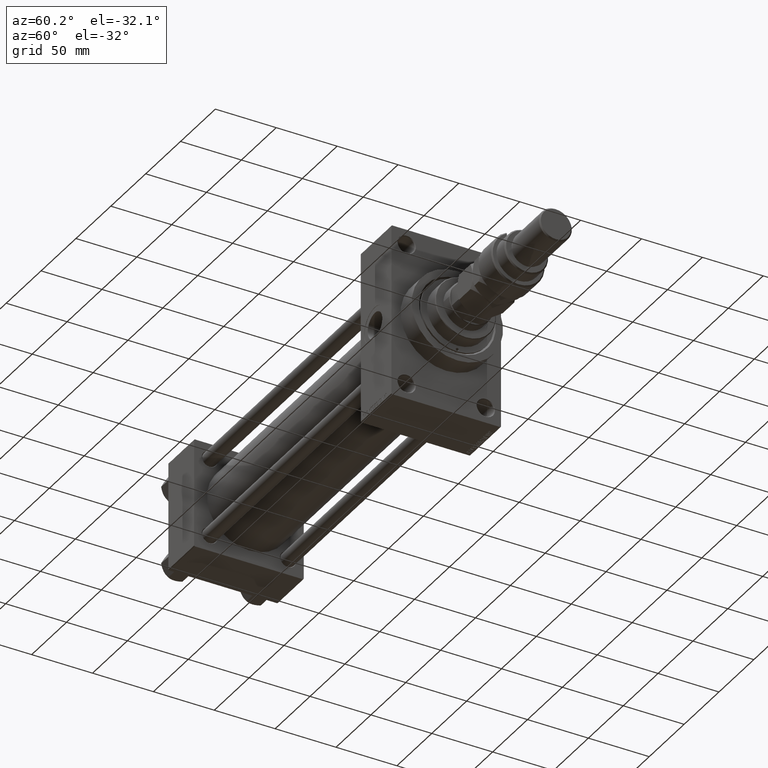
[diagram: clean part render]
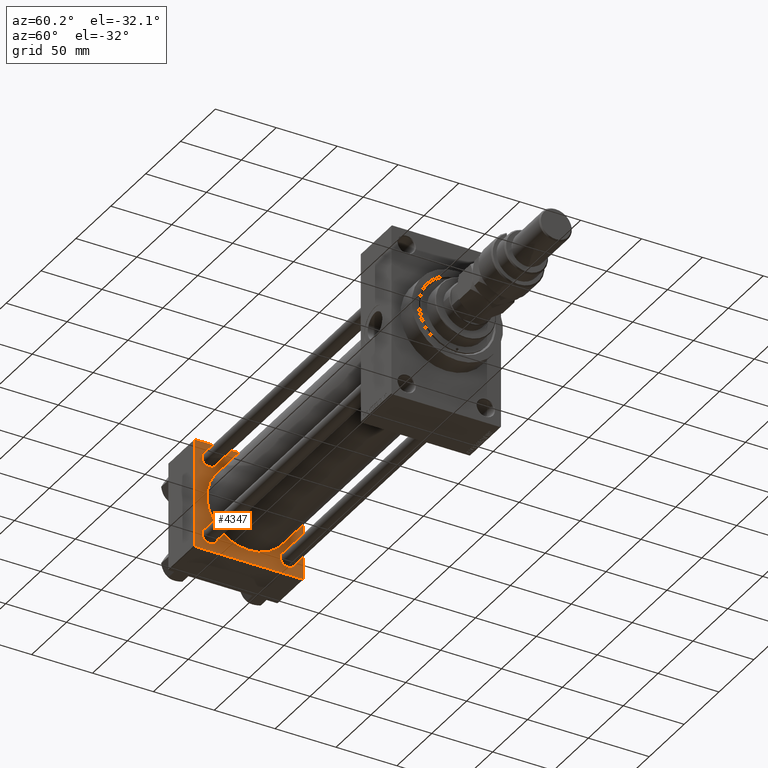
[diagram: same view with one face highlighted and labeled with its STEP entity id]
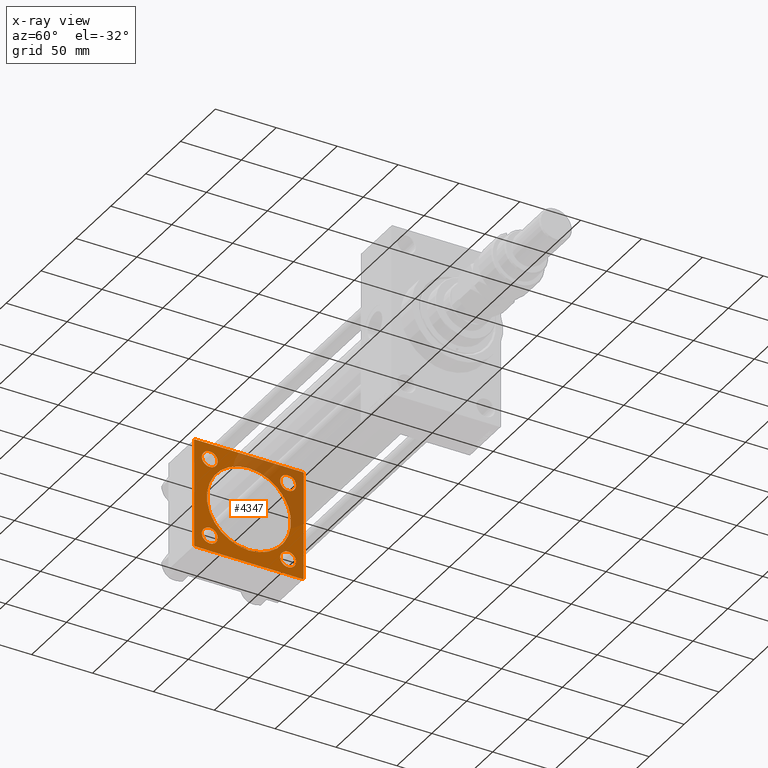
[diagram: x-ray of the same camera — body ghosted, the highlighted face saturated]
A machine part, auxiliary view. The second image highlights one B-rep face of the part: STEP entity #4347.
The next image is the same camera in x-ray: the body ghosted, the highlighted face saturated — about 29% of this face is hidden behind the body in this view.
In plain terms, the highlighted planar face has unit normal (-1, 0, 0).
Its self-contained STEP definition (entity closure, byte-faithful):
#312 = VERTEX_POINT ( 'NONE', #6706 ) ;
#498 = VERTEX_POINT ( 'NONE', #35925 ) ;
#501 = AXIS2_PLACEMENT_3D ( 'NONE', #23571, #46964, #20483 ) ;
#685 = CARTESIAN_POINT ( 'NONE',  ( 37.00000000000000000, 32.14999999999999147, -32.15000000000000568 ) ) ;
#723 = AXIS2_PLACEMENT_3D ( 'NONE', #28405, #13127, #5993 ) ;
#876 = AXIS2_PLACEMENT_3D ( 'NONE', #17547, #1804, #41478 ) ;
#914 = VERTEX_POINT ( 'NONE', #39124 ) ;
#1221 = AXIS2_PLACEMENT_3D ( 'NONE', #26495, #4095, #14780 ) ;
#1286 = DIRECTION ( 'NONE',  ( -1.000000000000000000, 0.000000000000000000, -0.000000000000000000 ) ) ;
#1369 = DIRECTION ( 'NONE',  ( -1.000000000000000000, 0.000000000000000000, -0.000000000000000000 ) ) ;
#1804 = DIRECTION ( 'NONE',  ( 1.000000000000000000, -0.000000000000000000, 0.000000000000000000 ) ) ;
#1896 = VERTEX_POINT ( 'NONE', #42953 ) ;
#2425 = CARTESIAN_POINT ( 'NONE',  ( 37.00000000000000000, 44.99999999999998579, -44.49999999999998579 ) ) ;
#2540 = VERTEX_POINT ( 'NONE', #8666 ) ;
#2908 = VERTEX_POINT ( 'NONE', #16399 ) ;
#2952 = CARTESIAN_POINT ( 'NONE',  ( 37.00000000000000000, 44.99999999999998579, 44.50000000000001421 ) ) ;
#3528 = EDGE_CURVE ( 'NONE', #43383, #312, #33815, .T. ) ;
#3575 = DIRECTION ( 'NONE',  ( -1.000000000000000000, 0.000000000000000000, -0.000000000000000000 ) ) ;
#3789 = ORIENTED_EDGE ( 'NONE', *, *, #26272, .T. ) ;
#4095 = DIRECTION ( 'NONE',  ( -1.000000000000000000, 0.000000000000000000, -0.000000000000000000 ) ) ;
#4347 = ADVANCED_FACE ( 'NONE', ( #47327, #28740, #32062, #12722, #24185, #28990 ), #24682, .F. ) ;
#4737 = DIRECTION ( 'NONE',  ( 0.000000000000000000, 0.7071067811865474617, -0.7071067811865474617 ) ) ;
#4980 = DIRECTION ( 'NONE',  ( 0.000000000000000000, 0.000000000000000000, 1.000000000000000000 ) ) ;
#5857 = EDGE_LOOP ( 'NONE', ( #10933, #29107 ) ) ;
#5993 = DIRECTION ( 'NONE',  ( 0.000000000000000000, 0.000000000000000000, 1.000000000000000000 ) ) ;
#6107 = DIRECTION ( 'NONE',  ( 0.000000000000000000, -1.000000000000000000, -1.541976423090495633E-16 ) ) ;
#6706 = CARTESIAN_POINT ( 'NONE',  ( 37.00000000000000000, -44.49999999999995737, 45.00000000000000000 ) ) ;
#6813 = CARTESIAN_POINT ( 'NONE',  ( 37.00000000000000000, 44.49999999999998579, -44.99999999999998579 ) ) ;
#7280 = AXIS2_PLACEMENT_3D ( 'NONE', #8129, #47549, #35355 ) ;
#7469 = EDGE_LOOP ( 'NONE', ( #38605, #37058 ) ) ;
#8129 = CARTESIAN_POINT ( 'NONE',  ( 37.00000000000000000, 32.14999999999999147, 32.15000000000000568 ) ) ;
#8368 = ORIENTED_EDGE ( 'NONE', *, *, #34555, .T. ) ;
#8477 = VERTEX_POINT ( 'NONE', #39472 ) ;
#8546 = CARTESIAN_POINT ( 'NONE',  ( 37.00000000000000000, -44.49999999999998579, -45.00000000000000000 ) ) ;
#8666 = CARTESIAN_POINT ( 'NONE',  ( 37.00000000000000711, -2.602085213965210642E-15, 34.50000000000000000 ) ) ;
#8813 = CARTESIAN_POINT ( 'NONE',  ( 37.00000000000000000, 44.99999999999998579, 45.00000000000001421 ) ) ;
#9443 = VERTEX_POINT ( 'NONE', #32611 ) ;
#9480 = CARTESIAN_POINT ( 'NONE',  ( 37.00000000000000000, -32.14999999999997726, -32.15000000000001279 ) ) ;
#9701 = CARTESIAN_POINT ( 'NONE',  ( 37.00000000000000711, 1.622946243093157097E-15, -34.50000000000000000 ) ) ;
#10205 = VERTEX_POINT ( 'NONE', #9701 ) ;
#10559 = CARTESIAN_POINT ( 'NONE',  ( 37.00000000000000000, -32.14999999999997726, 38.65000000000007674 ) ) ;
#10744 = AXIS2_PLACEMENT_3D ( 'NONE', #9480, #1369, #47905 ) ;
#10772 = CARTESIAN_POINT ( 'NONE',  ( 37.00000000000000000, -45.00000000000000711, 45.00000000000000000 ) ) ;
#10828 = DIRECTION ( 'NONE',  ( 0.000000000000000000, 0.000000000000000000, -1.000000000000000000 ) ) ;
#10933 = ORIENTED_EDGE ( 'NONE', *, *, #16917, .T. ) ;
#11384 = VERTEX_POINT ( 'NONE', #49341 ) ;
#11492 = ORIENTED_EDGE ( 'NONE', *, *, #20937, .T. ) ;
#11770 = CARTESIAN_POINT ( 'NONE',  ( 37.00000000000000000, -45.00000000000000711, 44.49999999999997158 ) ) ;
#12223 = EDGE_CURVE ( 'NONE', #26341, #2908, #41759, .T. ) ;
#12611 = DIRECTION ( 'NONE',  ( -1.000000000000000000, 0.000000000000000000, -0.000000000000000000 ) ) ;
#12627 = LINE ( 'NONE', #8813, #45452 ) ;
#12718 = LINE ( 'NONE', #28495, #46676 ) ;
#12722 = FACE_BOUND ( 'NONE', #7469, .T. ) ;
#13127 = DIRECTION ( 'NONE',  ( -1.000000000000000000, 0.000000000000000000, -0.000000000000000000 ) ) ;
#14780 = DIRECTION ( 'NONE',  ( 0.000000000000000000, 0.000000000000000000, 1.000000000000000000 ) ) ;
#14791 = EDGE_LOOP ( 'NONE', ( #47958, #34310 ) ) ;
#15082 = VERTEX_POINT ( 'NONE', #6813 ) ;
#15427 = EDGE_CURVE ( 'NONE', #498, #44564, #25790, .T. ) ;
#15578 = LINE ( 'NONE', #11770, #47767 ) ;
#16131 = CIRCLE ( 'NONE', #723, 6.500000000000061284 ) ;
#16290 = DIRECTION ( 'NONE',  ( -0.000000000000000000, 0.000000000000000000, 1.000000000000000000 ) ) ;
#16383 = CARTESIAN_POINT ( 'NONE',  ( 37.00000000000000000, 32.14999999999999147, 32.15000000000000568 ) ) ;
#16399 = CARTESIAN_POINT ( 'NONE',  ( 37.00000000000000000, -32.14999999999997726, -25.64999999999994884 ) ) ;
#16917 = EDGE_CURVE ( 'NONE', #914, #9443, #21611, .T. ) ;
#16946 = EDGE_CURVE ( 'NONE', #44564, #8477, #43655, .T. ) ;
#17547 = CARTESIAN_POINT ( 'NONE',  ( 37.00000000000000711, -2.602085213965210642E-15, 0.000000000000000000 ) ) ;
#17604 = AXIS2_PLACEMENT_3D ( 'NONE', #16383, #28344, #23777 ) ;
#17922 = DIRECTION ( 'NONE',  ( -0.000000000000000000, 0.7071067811865474617, 0.7071067811865474617 ) ) ;
#18270 = DIRECTION ( 'NONE',  ( 0.000000000000000000, -1.000000000000000000, -1.541976423090495387E-16 ) ) ;
#18384 = AXIS2_PLACEMENT_3D ( 'NONE', #685, #12611, #4980 ) ;
#19975 = EDGE_CURVE ( 'NONE', #10205, #2540, #33796, .T. ) ;
#20483 = DIRECTION ( 'NONE',  ( 0.000000000000000000, 0.000000000000000000, 1.000000000000000000 ) ) ;
#20767 = CIRCLE ( 'NONE', #49221, 6.499999999999950262 ) ;
#20796 = ORIENTED_EDGE ( 'NONE', *, *, #27730, .F. ) ;
#20870 = LINE ( 'NONE', #29012, #28310 ) ;
#20937 = EDGE_CURVE ( 'NONE', #15082, #11384, #39648, .T. ) ;
#21101 = VERTEX_POINT ( 'NONE', #10559 ) ;
#21611 = CIRCLE ( 'NONE', #18384, 6.499999999999950262 ) ;
#22115 = DIRECTION ( 'NONE',  ( -1.000000000000000000, 0.000000000000000000, -0.000000000000000000 ) ) ;
#22688 = EDGE_CURVE ( 'NONE', #27878, #44696, #48487, .T. ) ;
#23571 = CARTESIAN_POINT ( 'NONE',  ( 37.00000000000000711, -2.602085213965210642E-15, 0.000000000000000000 ) ) ;
#23777 = DIRECTION ( 'NONE',  ( 0.000000000000000000, 0.000000000000000000, 1.000000000000000000 ) ) ;
#23881 = EDGE_CURVE ( 'NONE', #312, #498, #15578, .T. ) ;
#23922 = CARTESIAN_POINT ( 'NONE',  ( 37.00000000000000000, 32.14999999999999147, 38.64999999999995595 ) ) ;
#24038 = CARTESIAN_POINT ( 'NONE',  ( 37.00000000000000000, 32.14999999999999147, 25.65000000000005542 ) ) ;
#24185 = FACE_BOUND ( 'NONE', #14791, .T. ) ;
#24213 = VECTOR ( 'NONE', #18270, 1000.000000000000000 ) ;
#24682 = PLANE ( 'NONE',  #35650 ) ;
#24840 = CARTESIAN_POINT ( 'NONE',  ( 37.00000000000000000, -32.14999999999997726, -38.65000000000007674 ) ) ;
#24865 = VECTOR ( 'NONE', #4737, 1000.000000000000114 ) ;
#24924 = EDGE_CURVE ( 'NONE', #15082, #8477, #20870, .T. ) ;
#25790 = LINE ( 'NONE', #10772, #26428 ) ;
#26272 = EDGE_CURVE ( 'NONE', #1896, #21101, #16131, .T. ) ;
#26341 = VERTEX_POINT ( 'NONE', #24840 ) ;
#26387 = CIRCLE ( 'NONE', #1221, 6.500000000000061284 ) ;
#26428 = VECTOR ( 'NONE', #38490, 1000.000000000000000 ) ;
#26495 = CARTESIAN_POINT ( 'NONE',  ( 37.00000000000000000, -32.14999999999997726, 32.15000000000001279 ) ) ;
#27473 = EDGE_LOOP ( 'NONE', ( #3789, #39401 ) ) ;
#27730 = EDGE_CURVE ( 'NONE', #46339, #11384, #12627, .T. ) ;
#27878 = VERTEX_POINT ( 'NONE', #24038 ) ;
#28015 = CARTESIAN_POINT ( 'NONE',  ( 37.00000000000000000, -32.14999999999997726, -32.15000000000001279 ) ) ;
#28310 = VECTOR ( 'NONE', #6107, 1000.000000000000000 ) ;
#28344 = DIRECTION ( 'NONE',  ( -1.000000000000000000, 0.000000000000000000, -0.000000000000000000 ) ) ;
#28405 = CARTESIAN_POINT ( 'NONE',  ( 37.00000000000000000, -32.14999999999997726, 32.15000000000001279 ) ) ;
#28432 = EDGE_CURVE ( 'NONE', #44696, #27878, #29200, .T. ) ;
#28495 = CARTESIAN_POINT ( 'NONE',  ( 37.00000000000000000, 44.49999999999998579, 45.00000000000001421 ) ) ;
#28726 = ORIENTED_EDGE ( 'NONE', *, *, #23881, .T. ) ;
#28740 = FACE_BOUND ( 'NONE', #5857, .T. ) ;
#28990 = FACE_OUTER_BOUND ( 'NONE', #32604, .T. ) ;
#29012 = CARTESIAN_POINT ( 'NONE',  ( 37.00000000000000000, 44.99999999999998579, -44.99999999999998579 ) ) ;
#29107 = ORIENTED_EDGE ( 'NONE', *, *, #49860, .T. ) ;
#29200 = CIRCLE ( 'NONE', #7280, 6.499999999999950262 ) ;
#29237 = ORIENTED_EDGE ( 'NONE', *, *, #15427, .T. ) ;
#29850 = CARTESIAN_POINT ( 'NONE',  ( 37.00000000000000000, 44.49999999999998579, 45.00000000000001421 ) ) ;
#31184 = AXIS2_PLACEMENT_3D ( 'NONE', #28015, #22115, #33579 ) ;
#31308 = CARTESIAN_POINT ( 'NONE',  ( 37.00000000000000000, -45.00000000000000000, -44.49999999999995737 ) ) ;
#32062 = FACE_BOUND ( 'NONE', #27473, .T. ) ;
#32604 = EDGE_LOOP ( 'NONE', ( #37127, #11492, #20796, #46711, #47264, #28726, #29237, #49562 ) ) ;
#32611 = CARTESIAN_POINT ( 'NONE',  ( 37.00000000000000000, 32.14999999999999147, -25.65000000000005542 ) ) ;
#33300 = CARTESIAN_POINT ( 'NONE',  ( 37.00000000000000000, 44.99999999999998579, 45.00000000000001421 ) ) ;
#33579 = DIRECTION ( 'NONE',  ( 0.000000000000000000, 0.000000000000000000, 1.000000000000000000 ) ) ;
#33796 = CIRCLE ( 'NONE', #501, 34.50000000000000000 ) ;
#33815 = LINE ( 'NONE', #33300, #24213 ) ;
#34310 = ORIENTED_EDGE ( 'NONE', *, *, #19975, .F. ) ;
#34555 = EDGE_CURVE ( 'NONE', #2908, #26341, #46474, .T. ) ;
#34586 = ORIENTED_EDGE ( 'NONE', *, *, #12223, .T. ) ;
#35317 = EDGE_CURVE ( 'NONE', #2540, #10205, #47163, .T. ) ;
#35355 = DIRECTION ( 'NONE',  ( 0.000000000000000000, 0.000000000000000000, 1.000000000000000000 ) ) ;
#35650 = AXIS2_PLACEMENT_3D ( 'NONE', #36621, #1286, #16290 ) ;
#35925 = CARTESIAN_POINT ( 'NONE',  ( 37.00000000000000000, -45.00000000000000711, 44.49999999999997158 ) ) ;
#36621 = CARTESIAN_POINT ( 'NONE',  ( 37.00000000000000000, 0.000000000000000000, 0.000000000000000000 ) ) ;
#37058 = ORIENTED_EDGE ( 'NONE', *, *, #28432, .T. ) ;
#37127 = ORIENTED_EDGE ( 'NONE', *, *, #24924, .F. ) ;
#37951 = EDGE_LOOP ( 'NONE', ( #34586, #8368 ) ) ;
#38490 = DIRECTION ( 'NONE',  ( 0.000000000000000000, 7.709882115452476934E-17, -1.000000000000000000 ) ) ;
#38605 = ORIENTED_EDGE ( 'NONE', *, *, #22688, .T. ) ;
#39124 = CARTESIAN_POINT ( 'NONE',  ( 37.00000000000000000, 32.14999999999999147, -38.64999999999995595 ) ) ;
#39401 = ORIENTED_EDGE ( 'NONE', *, *, #44595, .T. ) ;
#39472 = CARTESIAN_POINT ( 'NONE',  ( 37.00000000000000000, -44.49999999999995737, -45.00000000000000000 ) ) ;
#39648 = LINE ( 'NONE', #2425, #41968 ) ;
#40685 = DIRECTION ( 'NONE',  ( 0.000000000000000000, -0.7071067811865474617, 0.7071067811865474617 ) ) ;
#41478 = DIRECTION ( 'NONE',  ( 0.000000000000000000, 0.000000000000000000, 1.000000000000000000 ) ) ;
#41759 = CIRCLE ( 'NONE', #31184, 6.500000000000061284 ) ;
#41968 = VECTOR ( 'NONE', #17922, 1000.000000000000114 ) ;
#42244 = CARTESIAN_POINT ( 'NONE',  ( 37.00000000000000000, 32.14999999999999147, -32.15000000000000568 ) ) ;
#42953 = CARTESIAN_POINT ( 'NONE',  ( 37.00000000000000000, -32.14999999999997726, 25.64999999999994884 ) ) ;
#43383 = VERTEX_POINT ( 'NONE', #29850 ) ;
#43655 = LINE ( 'NONE', #8546, #24865 ) ;
#43984 = DIRECTION ( 'NONE',  ( 0.000000000000000000, 0.000000000000000000, 1.000000000000000000 ) ) ;
#44564 = VERTEX_POINT ( 'NONE', #31308 ) ;
#44595 = EDGE_CURVE ( 'NONE', #21101, #1896, #26387, .T. ) ;
#44696 = VERTEX_POINT ( 'NONE', #23922 ) ;
#45452 = VECTOR ( 'NONE', #10828, 1000.000000000000000 ) ;
#46339 = VERTEX_POINT ( 'NONE', #2952 ) ;
#46474 = CIRCLE ( 'NONE', #10744, 6.500000000000061284 ) ;
#46676 = VECTOR ( 'NONE', #40685, 1000.000000000000114 ) ;
#46711 = ORIENTED_EDGE ( 'NONE', *, *, #47966, .T. ) ;
#46964 = DIRECTION ( 'NONE',  ( 1.000000000000000000, -0.000000000000000000, 0.000000000000000000 ) ) ;
#47163 = CIRCLE ( 'NONE', #876, 34.50000000000000000 ) ;
#47264 = ORIENTED_EDGE ( 'NONE', *, *, #3528, .T. ) ;
#47327 = FACE_BOUND ( 'NONE', #37951, .T. ) ;
#47549 = DIRECTION ( 'NONE',  ( -1.000000000000000000, 0.000000000000000000, -0.000000000000000000 ) ) ;
#47622 = DIRECTION ( 'NONE',  ( -0.000000000000000000, -0.7071067811865425767, -0.7071067811865524577 ) ) ;
#47767 = VECTOR ( 'NONE', #47622, 1000.000000000000114 ) ;
#47905 = DIRECTION ( 'NONE',  ( 0.000000000000000000, 0.000000000000000000, 1.000000000000000000 ) ) ;
#47958 = ORIENTED_EDGE ( 'NONE', *, *, #35317, .F. ) ;
#47966 = EDGE_CURVE ( 'NONE', #46339, #43383, #12718, .T. ) ;
#48487 = CIRCLE ( 'NONE', #17604, 6.499999999999950262 ) ;
#49221 = AXIS2_PLACEMENT_3D ( 'NONE', #42244, #3575, #43984 ) ;
#49341 = CARTESIAN_POINT ( 'NONE',  ( 37.00000000000000000, 44.99999999999998579, -44.49999999999995737 ) ) ;
#49562 = ORIENTED_EDGE ( 'NONE', *, *, #16946, .T. ) ;
#49860 = EDGE_CURVE ( 'NONE', #9443, #914, #20767, .T. ) ;